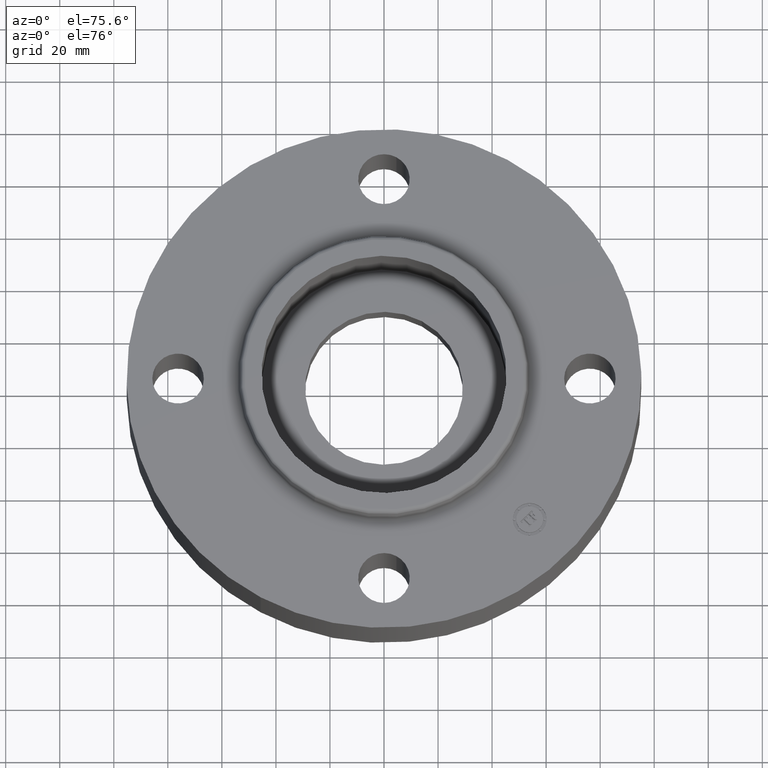
[diagram: clean part render]
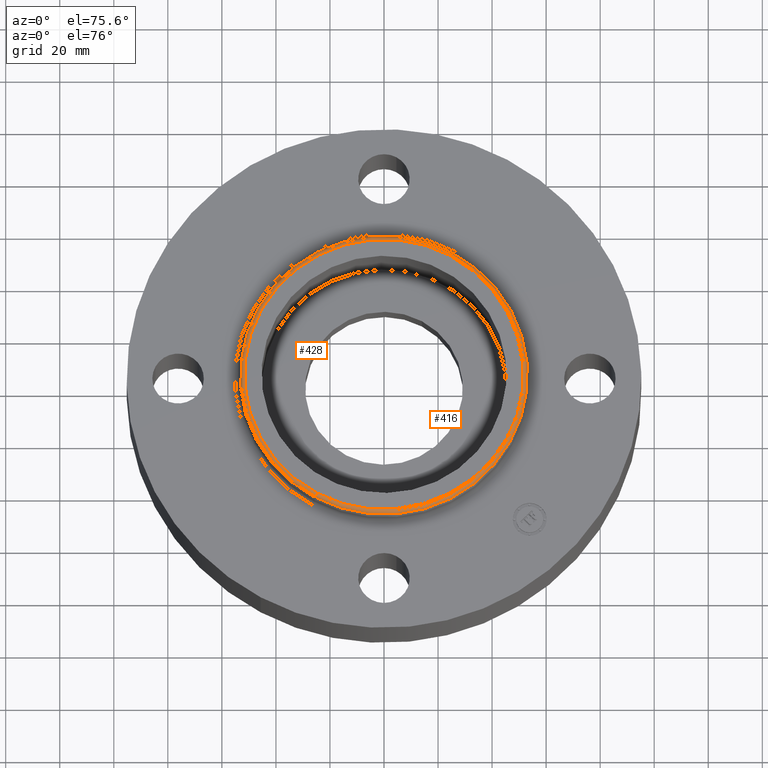
[diagram: same view with one multi-face feature highlighted, each face labeled with its STEP entity id]
A machine part, auxiliary view. The highlighted faces form ONE feature: a constant-radius fillet chain: 2 tangent blend faces with common blend radius 1.524 mm. The faces share edges in the B-rep.
Their STEP definitions:
[1] entity #416 (Torus):
#357=AXIS2_PLACEMENT_3D('Circle Axis2P3D',#355,#356,$) ;
#389=AXIS2_PLACEMENT_3D('Torus Axis2P3D',#386,#387,#388) ;
#393=AXIS2_PLACEMENT_3D('Circle Axis2P3D',#391,#392,$) ;
#400=AXIS2_PLACEMENT_3D('Circle Axis2P3D',#398,#399,$) ;
#407=AXIS2_PLACEMENT_3D('Circle Axis2P3D',#405,#406,$) ;
#352=CARTESIAN_POINT('Vertex',(1.00268208338,1.8353972424,1.07041889066)) ;
#355=CARTESIAN_POINT('Axis2P3D Location',(0.,0.,1.07041889066)) ;
#359=CARTESIAN_POINT('Vertex',(-1.00268208338,-1.8353972424,1.07041889066)) ;
#386=CARTESIAN_POINT('Axis2P3D Location',(0.,0.,1.06)) ;
#391=CARTESIAN_POINT('Axis2P3D Location',(0.974353564133,1.78354223575,1.06)) ;
#395=CARTESIAN_POINT('Vertex',(0.974353564133,1.78354223575,1.12)) ;
#398=CARTESIAN_POINT('Axis2P3D Location',(0.,0.,1.12)) ;
#402=CARTESIAN_POINT('Vertex',(-0.974353564133,-1.78354223575,1.12)) ;
#405=CARTESIAN_POINT('Axis2P3D Location',(-0.974353564133,-1.78354223575,1.06)) ;
#356=DIRECTION('Axis2P3D Direction',(0.,0.,-0.0393700787402)) ;
#387=DIRECTION('Axis2P3D Direction',(0.,0.,-0.0393700787402)) ;
#388=DIRECTION('Axis2P3D XDirection',(-0.0188750212049,-0.0345504945626,0.)) ;
#392=DIRECTION('Axis2P3D Direction',(-0.0345504945626,0.0188750212049,0.)) ;
#399=DIRECTION('Axis2P3D Direction',(0.,0.,-0.0393700787402)) ;
#406=DIRECTION('Axis2P3D Direction',(0.0345504945626,-0.0188750212049,0.)) ;
#411=ORIENTED_EDGE('',*,*,#361,.F.) ;
#412=ORIENTED_EDGE('',*,*,#397,.T.) ;
#413=ORIENTED_EDGE('',*,*,#404,.T.) ;
#414=ORIENTED_EDGE('',*,*,#409,.F.) ;
#416=ADVANCED_FACE('PartBody',(#415),#390,.T.) ;
#358=CIRCLE('generated circle',#357,2.09142401195) ;
#394=CIRCLE('generated circle',#393,0.0600000000002) ;
#401=CIRCLE('generated circle',#400,2.03233554677) ;
#408=CIRCLE('generated circle',#407,0.0600000000002) ;
#390=TOROIDAL_SURFACE('homeo Torus',#389,2.03233554677,0.0600000000002) ;
#361=EDGE_CURVE('',#353,#360,#358,.T.) ;
#397=EDGE_CURVE('',#353,#396,#394,.F.) ;
#404=EDGE_CURVE('',#396,#403,#401,.T.) ;
#409=EDGE_CURVE('',#360,#403,#408,.F.) ;
#410=EDGE_LOOP('',(#411,#412,#413,#414)) ;
#415=FACE_OUTER_BOUND('',#410,.T.) ;
#353=VERTEX_POINT('',#352) ;
#360=VERTEX_POINT('',#359) ;
#396=VERTEX_POINT('',#395) ;
#403=VERTEX_POINT('',#402) ;
[2] entity #428 (Torus):
#376=AXIS2_PLACEMENT_3D('Circle Axis2P3D',#374,#375,$) ;
#389=AXIS2_PLACEMENT_3D('Torus Axis2P3D',#386,#387,#388) ;
#393=AXIS2_PLACEMENT_3D('Circle Axis2P3D',#391,#392,$) ;
#407=AXIS2_PLACEMENT_3D('Circle Axis2P3D',#405,#406,$) ;
#419=AXIS2_PLACEMENT_3D('Circle Axis2P3D',#417,#418,$) ;
#352=CARTESIAN_POINT('Vertex',(1.00268208338,1.8353972424,1.07041889066)) ;
#359=CARTESIAN_POINT('Vertex',(-1.00268208338,-1.8353972424,1.07041889066)) ;
#374=CARTESIAN_POINT('Axis2P3D Location',(0.,0.,1.07041889066)) ;
#386=CARTESIAN_POINT('Axis2P3D Location',(0.,0.,1.06)) ;
#391=CARTESIAN_POINT('Axis2P3D Location',(0.974353564133,1.78354223575,1.06)) ;
#395=CARTESIAN_POINT('Vertex',(0.974353564133,1.78354223575,1.12)) ;
#402=CARTESIAN_POINT('Vertex',(-0.974353564133,-1.78354223575,1.12)) ;
#405=CARTESIAN_POINT('Axis2P3D Location',(-0.974353564133,-1.78354223575,1.06)) ;
#417=CARTESIAN_POINT('Axis2P3D Location',(0.,0.,1.12)) ;
#375=DIRECTION('Axis2P3D Direction',(0.,0.,-0.0393700787402)) ;
#387=DIRECTION('Axis2P3D Direction',(0.,0.,-0.0393700787402)) ;
#388=DIRECTION('Axis2P3D XDirection',(-0.0188750212049,-0.0345504945626,0.)) ;
#392=DIRECTION('Axis2P3D Direction',(-0.0345504945626,0.0188750212049,0.)) ;
#406=DIRECTION('Axis2P3D Direction',(0.0345504945626,-0.0188750212049,0.)) ;
#418=DIRECTION('Axis2P3D Direction',(0.,0.,-0.0393700787402)) ;
#423=ORIENTED_EDGE('',*,*,#378,.F.) ;
#424=ORIENTED_EDGE('',*,*,#409,.T.) ;
#425=ORIENTED_EDGE('',*,*,#421,.T.) ;
#426=ORIENTED_EDGE('',*,*,#397,.F.) ;
#428=ADVANCED_FACE('PartBody',(#427),#390,.T.) ;
#377=CIRCLE('generated circle',#376,2.09142401195) ;
#394=CIRCLE('generated circle',#393,0.0600000000002) ;
#408=CIRCLE('generated circle',#407,0.0600000000002) ;
#420=CIRCLE('generated circle',#419,2.03233554677) ;
#390=TOROIDAL_SURFACE('homeo Torus',#389,2.03233554677,0.0600000000002) ;
#378=EDGE_CURVE('',#360,#353,#377,.T.) ;
#397=EDGE_CURVE('',#353,#396,#394,.F.) ;
#409=EDGE_CURVE('',#360,#403,#408,.F.) ;
#421=EDGE_CURVE('',#403,#396,#420,.T.) ;
#422=EDGE_LOOP('',(#423,#424,#425,#426)) ;
#427=FACE_OUTER_BOUND('',#422,.T.) ;
#353=VERTEX_POINT('',#352) ;
#360=VERTEX_POINT('',#359) ;
#396=VERTEX_POINT('',#395) ;
#403=VERTEX_POINT('',#402) ;